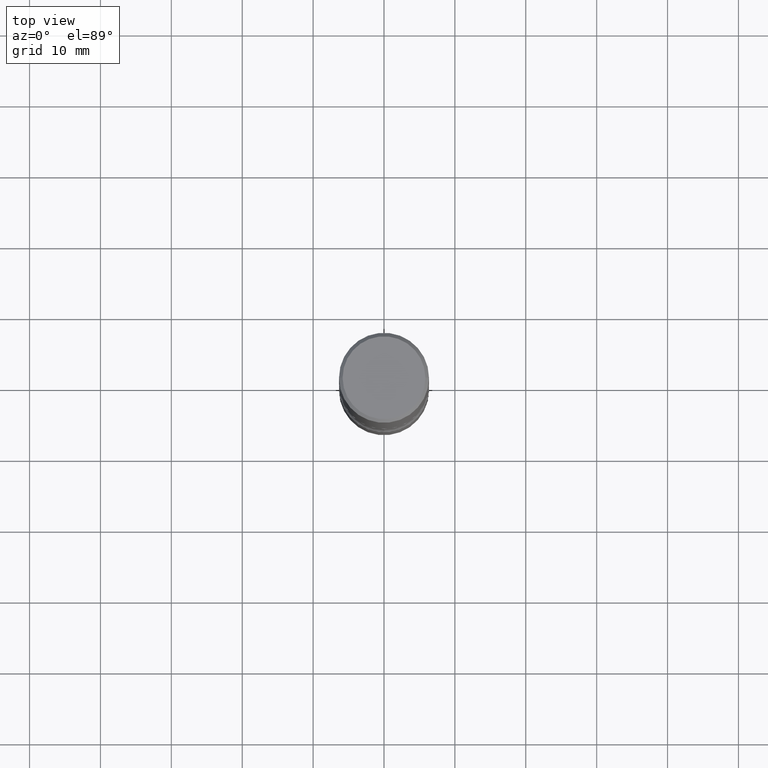
[diagram: clean part render]
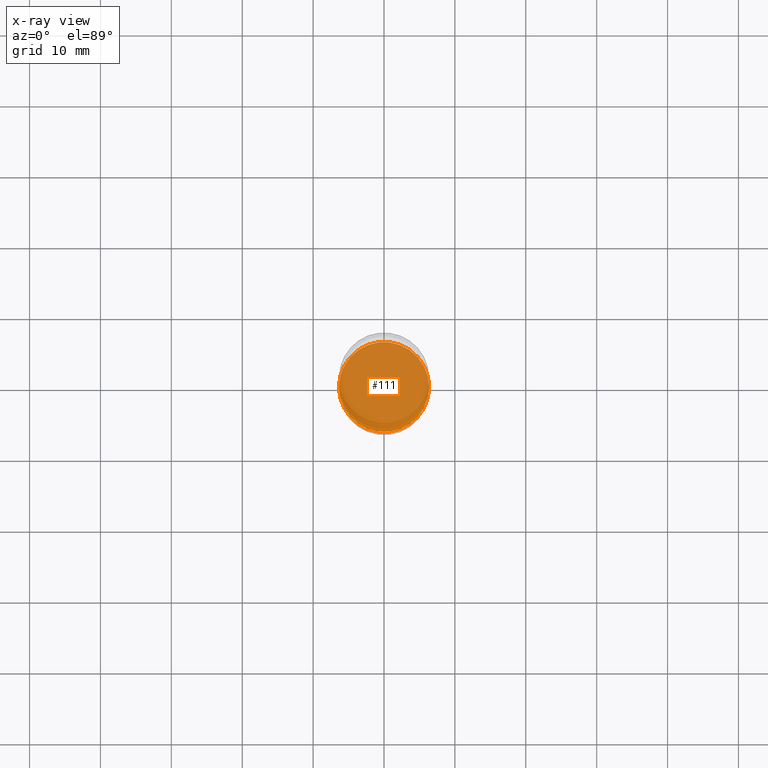
[diagram: x-ray — body ghosted, one internal face saturated and labeled with its STEP entity id]
A machine part, top view, then the same camera in x-ray: the body is ghosted and one INTERNAL B-rep face — a face not visible from any outside direction — is saturated and labeled: STEP entity #111.
In plain terms, the highlighted planar face has unit normal (0, -0, -1).
Its self-contained STEP definition (entity closure, byte-faithful):
#9 = DIRECTION ( 'NONE',  ( 1.000000000000000000, -6.982962677686264344E-15, 0.000000000000000000 ) ) ;
#58 = DIRECTION ( 'NONE',  ( -2.445468806185136597E-29, 3.491481338843145583E-15, 1.000000000000000000 ) ) ;
#77 = CARTESIAN_POINT ( 'NONE',  ( 7.336406418555409790E-29, -1.047444401652943635E-14, -3.000000000000000444 ) ) ;
#94 = FACE_OUTER_BOUND ( 'NONE', #121, .T. ) ;
#111 = ADVANCED_FACE ( 'NONE', ( #94 ), #402, .F. ) ;
#116 = CARTESIAN_POINT ( 'NONE',  ( 0.2500000000000002220, -1.222018468595100461E-14, -3.000000000000000444 ) ) ;
#121 = EDGE_LOOP ( 'NONE', ( #422, #476 ) ) ;
#141 = AXIS2_PLACEMENT_3D ( 'NONE', #179, #361, #262 ) ;
#161 = VERTEX_POINT ( 'NONE', #316 ) ;
#164 = AXIS2_PLACEMENT_3D ( 'NONE', #458, #58, #9 ) ;
#179 = CARTESIAN_POINT ( 'NONE',  ( 2.758072199146696450E-29, -1.703087920132366177E-14, -2.999999999999999556 ) ) ;
#241 = DIRECTION ( 'NONE',  ( 1.000000000000000000, -6.982962677686264344E-15, 0.000000000000000000 ) ) ;
#262 = DIRECTION ( 'NONE',  ( -1.000000000000000000, 6.982962677686265922E-15, -4.876176775795935793E-29 ) ) ;
#310 = CIRCLE ( 'NONE', #164, 0.2500000000000002220 ) ;
#316 = CARTESIAN_POINT ( 'NONE',  ( -0.2500000000000002220, -1.039145562646810746E-14, -3.000000000000000444 ) ) ;
#326 = VERTEX_POINT ( 'NONE', #116 ) ;
#340 = AXIS2_PLACEMENT_3D ( 'NONE', #77, #426, #241 ) ;
#361 = DIRECTION ( 'NONE',  ( 2.438088387897960049E-29, -3.491481338843145188E-15, -1.000000000000000000 ) ) ;
#387 = EDGE_CURVE ( 'NONE', #161, #326, #419, .T. ) ;
#402 = PLANE ( 'NONE',  #141 ) ;
#419 = CIRCLE ( 'NONE', #340, 0.2500000000000002220 ) ;
#422 = ORIENTED_EDGE ( 'NONE', *, *, #555, .T. ) ;
#426 = DIRECTION ( 'NONE',  ( -2.445468806185136597E-29, 3.491481338843145583E-15, 1.000000000000000000 ) ) ;
#458 = CARTESIAN_POINT ( 'NONE',  ( 7.336406418555409790E-29, -1.047444401652943635E-14, -3.000000000000000444 ) ) ;
#476 = ORIENTED_EDGE ( 'NONE', *, *, #387, .T. ) ;
#555 = EDGE_CURVE ( 'NONE', #326, #161, #310, .T. ) ;